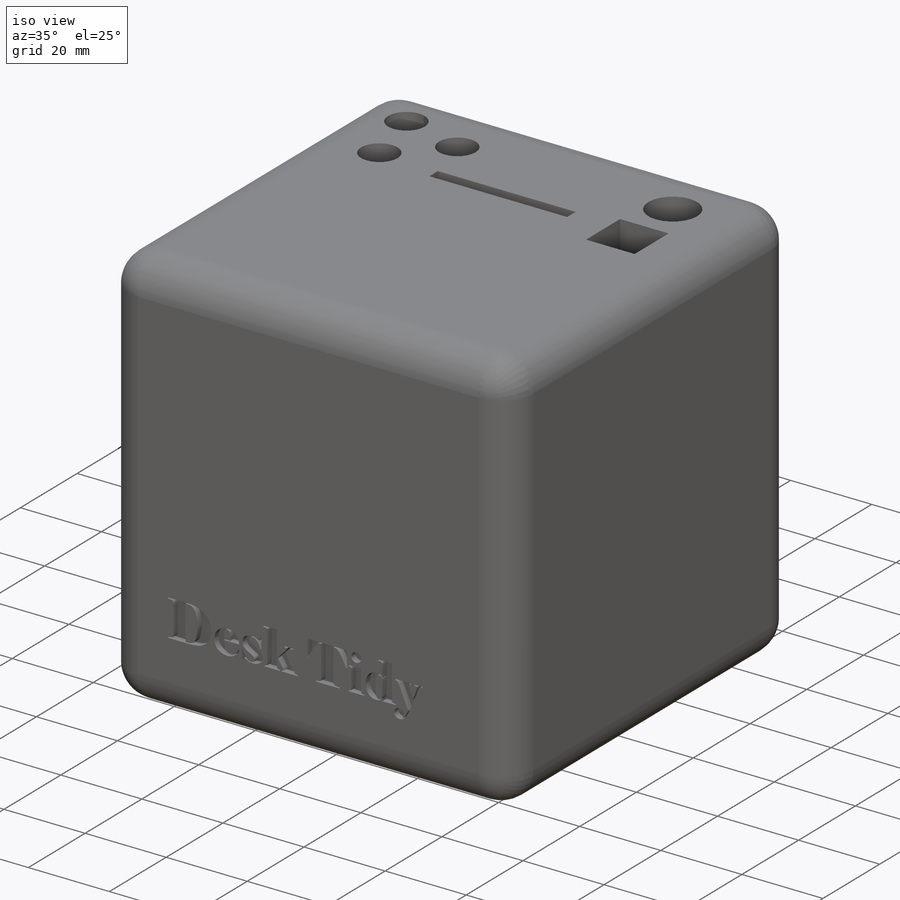
[diagram: iso view]
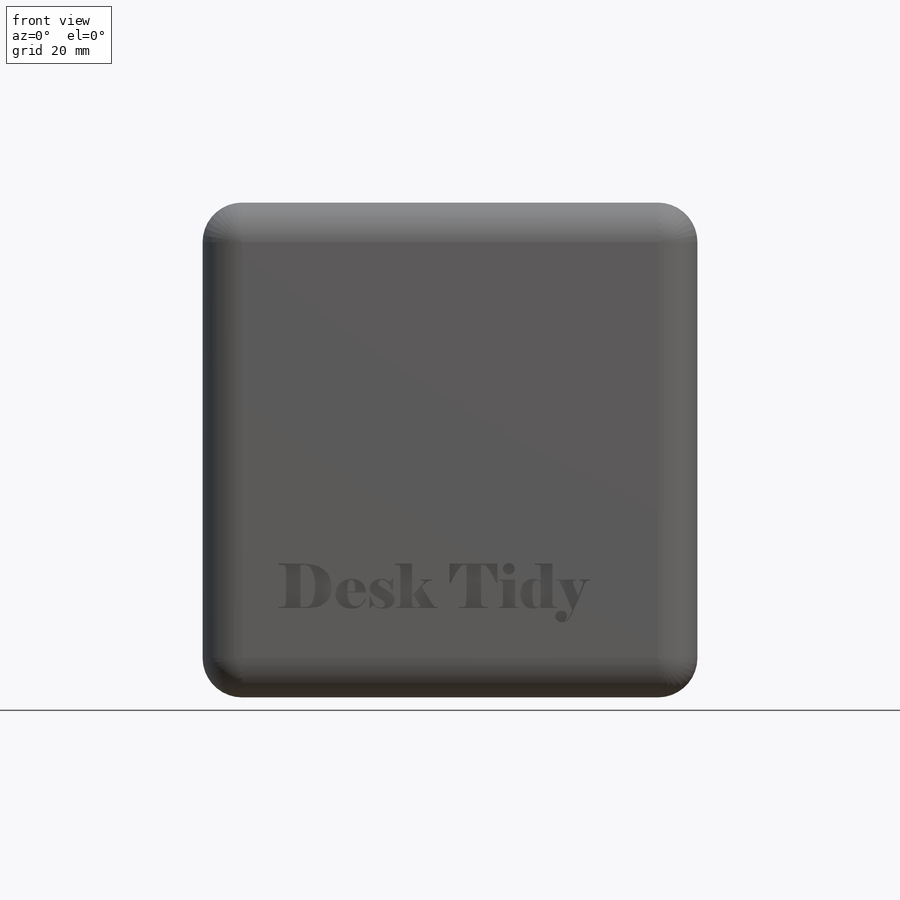
[diagram: front view]
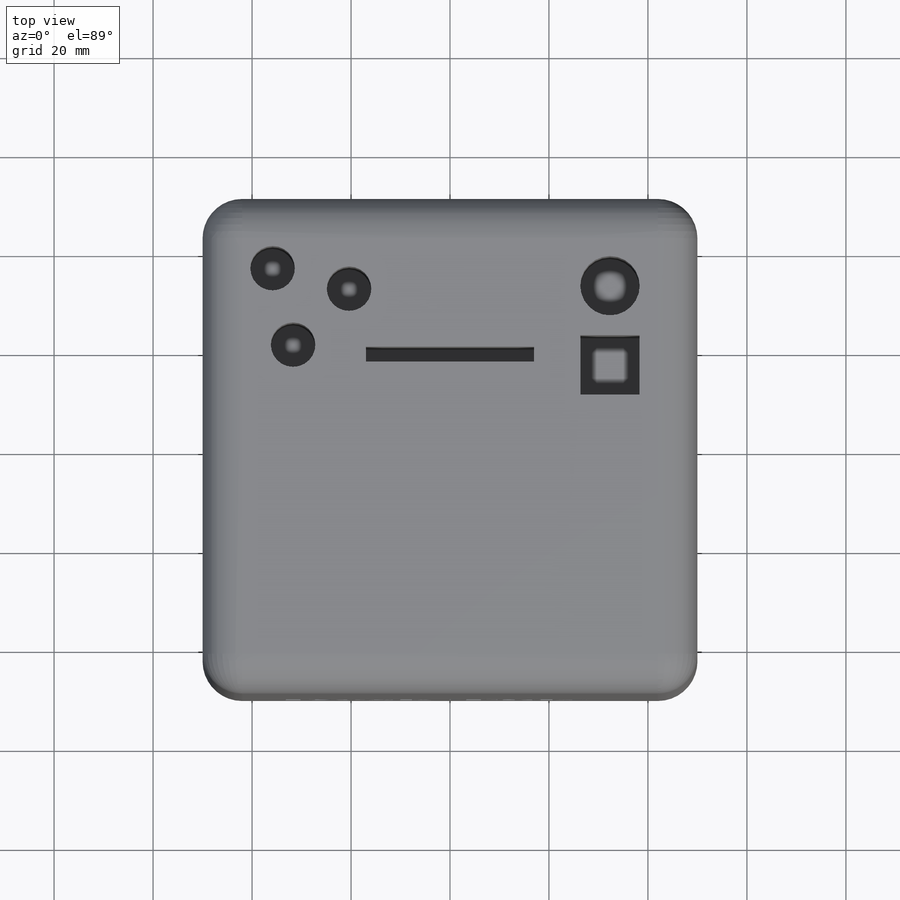
[diagram: top view]
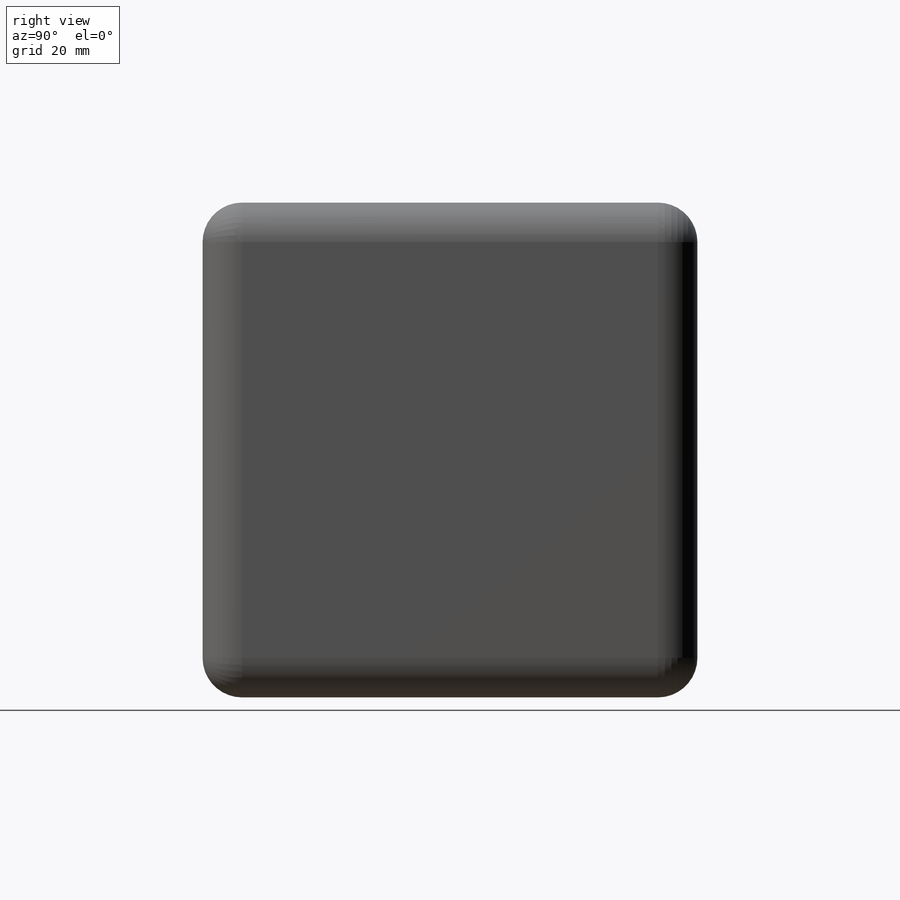
[diagram: right view]
SOLIDWORKS PART (.sldprt)
format: sldprt  version: not decoded by parser v0  size: 914,944 bytes
history: native  units: mm
features: sketch x3, cut_extrude x2, material x1, extrude x1, fillet x1 (+15 scaffold rows collapsed)
feature tree (23):
  scaffold x15  (default folders/planes/origin — collapsed)
  material  "Material <not specified>"
  sketch  "Sketch1"  dims[D1=100.0mm]
  extrude  "Cube"  Depth=100mm
  sketch  "Sketch2"  dims[c1.D1=12.0mm c1.D7=9.0mm c1.D2=25.0mm c1.D3=12.0mm c1.D4=10.0mm c1.D5=34.0mm c1.D6=3.0mm c1.D8=20.0mm c1.D9=8.0mm c1.D10=~14.227482mm c2.D10=60.0deg]
  cut_extrude  "Cut outs"  Depth=35mm
  fillet  "Fillet5"  Radius=8mm
  sketch  "Sketch3"  dims[D1=10.0mm D2=15.0mm]
  cut_extrude  "Text"  Depth=1.5mm
decode coverage: 7 of 7 modeling features carry decoded parameters
note: ~ marks probable driven/reference dimensions
note: suppression state not decoded; provenance and decode notes live in map.json
